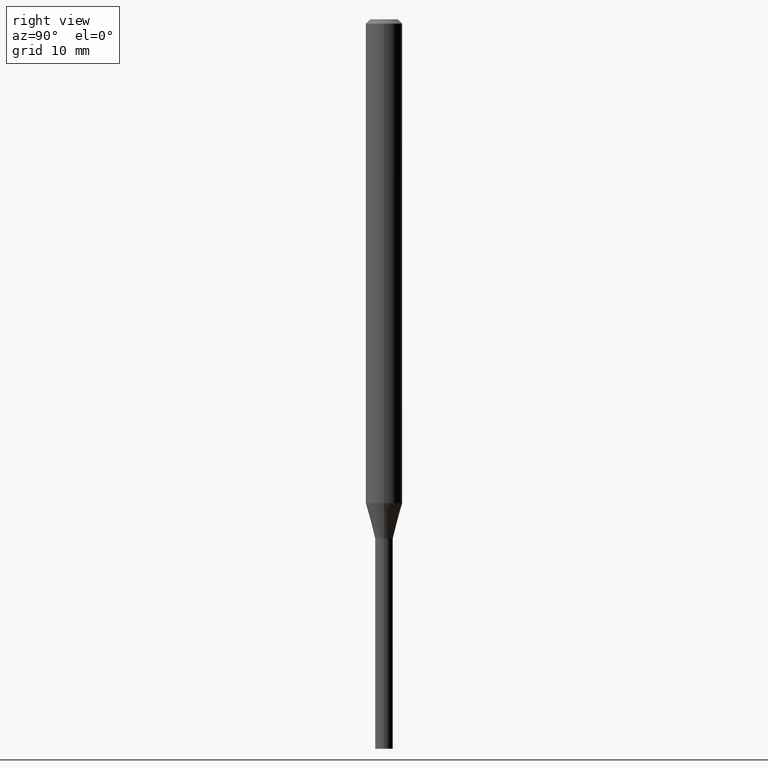
[diagram: clean part render]
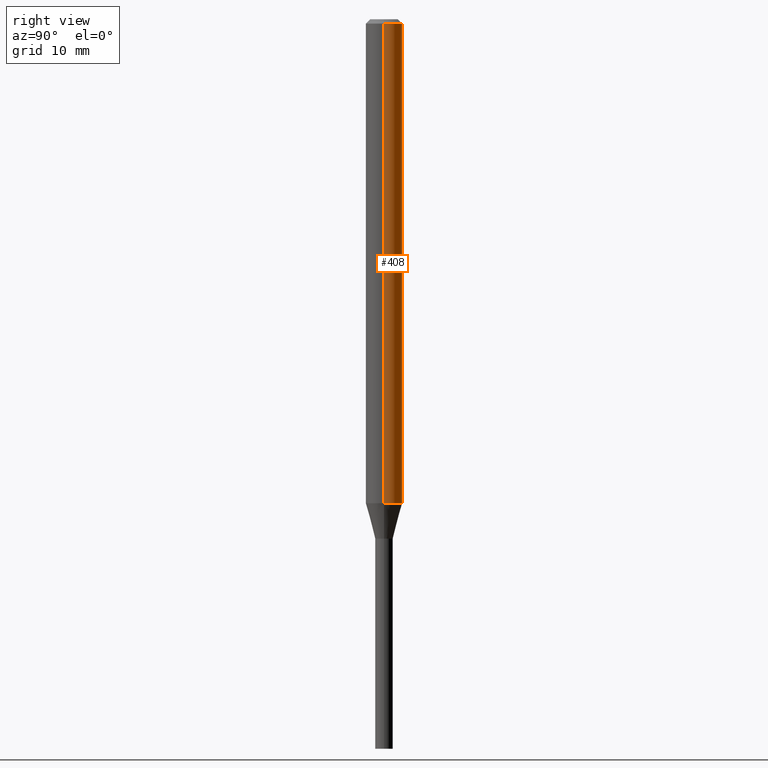
[diagram: same view with one face highlighted and labeled with its STEP entity id]
A machine part, right view. The second image highlights one B-rep face of the part: STEP entity #408.
In plain terms, the highlighted cylindrical surface (edge-blend (fillet) strip) has radius 1.5875 mm, axis along (-0, 0, 1).
Its self-contained STEP definition (entity closure, byte-faithful):
#24 = CARTESIAN_POINT ( 'NONE',  ( 4.056319525436792894E-29, -5.791349246257960062E-15, -1.658708348754011741 ) ) ;
#31 = FACE_OUTER_BOUND ( 'NONE', #419, .T. ) ;
#40 = EDGE_CURVE ( 'NONE', #222, #71, #365, .T. ) ;
#71 = VERTEX_POINT ( 'NONE', #260 ) ;
#92 = VECTOR ( 'NONE', #160, 39.37007874015748143 ) ;
#93 = CARTESIAN_POINT ( 'NONE',  ( -0.06250000000000000000, 4.440892098500626162E-16, -3.074334431409316114E-30 ) ) ;
#94 = LINE ( 'NONE', #93, #92 ) ;
#113 = AXIS2_PLACEMENT_3D ( 'NONE', #459, #414, #420 ) ;
#158 = CIRCLE ( 'NONE', #413, 0.06250000000000000000 ) ;
#160 = DIRECTION ( 'NONE',  ( -2.445468806185136877E-29, 3.491481338843145188E-15, 1.000000000000000000 ) ) ;
#162 = AXIS2_PLACEMENT_3D ( 'NONE', #251, #435, #394 ) ;
#166 = EDGE_CURVE ( 'NONE', #189, #71, #94, .T. ) ;
#168 = ORIENTED_EDGE ( 'NONE', *, *, #209, .F. ) ;
#171 = ORIENTED_EDGE ( 'NONE', *, *, #425, .T. ) ;
#179 = ORIENTED_EDGE ( 'NONE', *, *, #40, .F. ) ;
#189 = VERTEX_POINT ( 'NONE', #231 ) ;
#209 = EDGE_CURVE ( 'NONE', #424, #222, #374, .T. ) ;
#222 = VERTEX_POINT ( 'NONE', #444 ) ;
#231 = CARTESIAN_POINT ( 'NONE',  ( -0.06250000000000000000, -5.347260036407896657E-15, -1.658708348754011741 ) ) ;
#233 = DIRECTION ( 'NONE',  ( -2.445468806185136877E-29, 3.491481338843145188E-15, 1.000000000000000000 ) ) ;
#251 = CARTESIAN_POINT ( 'NONE',  ( 3.668203209277705088E-31, -5.237222008264718399E-17, -0.01499999999999999944 ) ) ;
#260 = CARTESIAN_POINT ( 'NONE',  ( -0.06250000000000000000, -2.477771523320241152E-15, -0.01499999999999999944 ) ) ;
#271 = DIRECTION ( 'NONE',  ( 1.000000000000000000, -6.982962677686262766E-15, 0.000000000000000000 ) ) ;
#272 = VECTOR ( 'NONE', #233, 39.37007874015748143 ) ;
#365 = CIRCLE ( 'NONE', #162, 0.06250000000000000000 ) ;
#374 = LINE ( 'NONE', #407, #272 ) ;
#375 = CYLINDRICAL_SURFACE ( 'NONE', #113, 0.06250000000000000000 ) ;
#394 = DIRECTION ( 'NONE',  ( 1.000000000000000000, -6.982962677686266711E-15, 0.000000000000000000 ) ) ;
#407 = CARTESIAN_POINT ( 'NONE',  ( 0.06250000000000000000, -4.364351673553916694E-16, 3.047610484872459871E-30 ) ) ;
#408 = ADVANCED_FACE ( 'NONE', ( #31 ), #375, .T. ) ;
#413 = AXIS2_PLACEMENT_3D ( 'NONE', #24, #451, #271 ) ;
#414 = DIRECTION ( 'NONE',  ( -2.445468806185136597E-29, 3.491481338843145583E-15, 1.000000000000000000 ) ) ;
#416 = CARTESIAN_POINT ( 'NONE',  ( 0.06250000000000000000, -6.227784413613351732E-15, -1.658708348754011741 ) ) ;
#419 = EDGE_LOOP ( 'NONE', ( #171, #428, #179, #168 ) ) ;
#420 = DIRECTION ( 'NONE',  ( 1.000000000000000000, -6.982962677686266711E-15, 4.876176775795935793E-29 ) ) ;
#424 = VERTEX_POINT ( 'NONE', #416 ) ;
#425 = EDGE_CURVE ( 'NONE', #424, #189, #158, .T. ) ;
#428 = ORIENTED_EDGE ( 'NONE', *, *, #166, .T. ) ;
#435 = DIRECTION ( 'NONE',  ( -2.445468806185136597E-29, 3.491481338843145583E-15, 1.000000000000000000 ) ) ;
#444 = CARTESIAN_POINT ( 'NONE',  ( 0.06250000000000000000, -4.888073874380388472E-16, -0.01499999999999999944 ) ) ;
#451 = DIRECTION ( 'NONE',  ( -2.445468806185136597E-29, 3.491481338843145583E-15, 1.000000000000000000 ) ) ;
#459 = CARTESIAN_POINT ( 'NONE',  ( 0.000000000000000000, 0.000000000000000000, 0.000000000000000000 ) ) ;